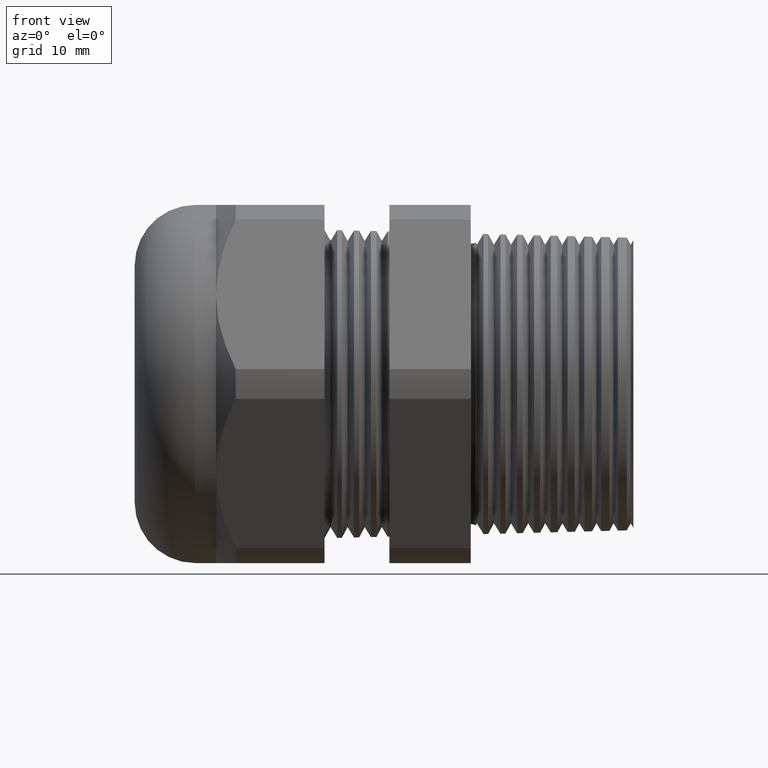
[diagram: clean part render]
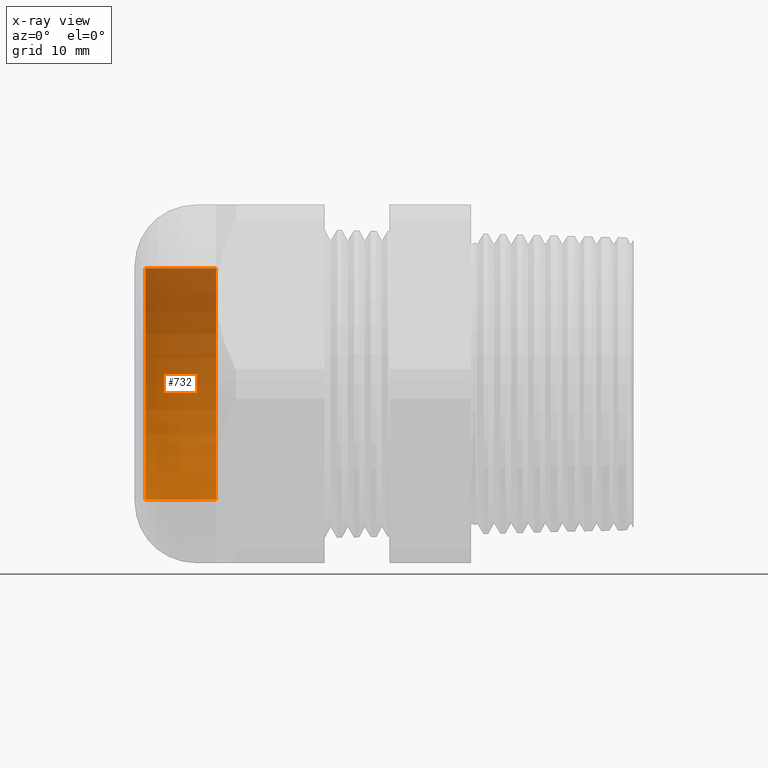
[diagram: x-ray — body ghosted, one internal face saturated and labeled with its STEP entity id]
A machine part, front view, then the same camera in x-ray: the body is ghosted and one INTERNAL B-rep face — a face not visible from any outside direction — is saturated and labeled: STEP entity #732.
In plain terms, the highlighted cylindrical surface (partial cylindrical patch) has radius 10.668 mm, axis along (1, 0, 0).
Its self-contained STEP definition (entity closure, byte-faithful):
#691 = EDGE_LOOP ( 'NONE', ( #733, #734, #699, #736 ) ) ;
#695 = VERTEX_POINT ( 'NONE', #2359 ) ;
#696 = VERTEX_POINT ( 'NONE', #2358 ) ;
#697 = EDGE_CURVE ( 'NONE', #750, #696, #2357, .T. ) ;
#699 = ORIENTED_EDGE ( 'NONE', *, *, #707, .F. ) ;
#707 = EDGE_CURVE ( 'NONE', #735, #696, #2406, .T. ) ;
#709 = EDGE_CURVE ( 'NONE', #695, #750, #2399, .T. ) ;
#732 = ADVANCED_FACE ( 'NONE', ( #2415 ), #2414, .T. ) ;
#733 = ORIENTED_EDGE ( 'NONE', *, *, #709, .T. ) ;
#734 = ORIENTED_EDGE ( 'NONE', *, *, #697, .T. ) ;
#735 = VERTEX_POINT ( 'NONE', #2473 ) ;
#736 = ORIENTED_EDGE ( 'NONE', *, *, #737, .F. ) ;
#737 = EDGE_CURVE ( 'NONE', #695, #735, #2472, .T. ) ;
#750 = VERTEX_POINT ( 'NONE', #2444 ) ;
#2354 = DIRECTION ( 'NONE',  ( 1.000000000000000000, 0.0000000000000000000, 0.0000000000000000000 ) ) ;
#2355 = VECTOR ( 'NONE', #2354, 39.37007874015748100 ) ;
#2356 = CARTESIAN_POINT ( 'NONE',  ( 0.0000000000000000000, 5.143516556418884400E-017, 0.4200000000000000400 ) ) ;
#2357 = LINE ( 'NONE', #2356, #2355 ) ;
#2358 = CARTESIAN_POINT ( 'NONE',  ( -1.234724409448819000, 5.143516556418884400E-017, 0.4200000000000000400 ) ) ;
#2359 = CARTESIAN_POINT ( 'NONE',  ( -1.491000000000000100, 0.0000000000000000000, -0.4200000000000000400 ) ) ;
#2395 = DIRECTION ( 'NONE',  ( 0.0000000000000000000, 0.0000000000000000000, -1.000000000000000000 ) ) ;
#2396 = DIRECTION ( 'NONE',  ( 1.000000000000000000, 0.0000000000000000000, 0.0000000000000000000 ) ) ;
#2397 = CARTESIAN_POINT ( 'NONE',  ( -1.491000000000000100, 0.0000000000000000000, 0.0000000000000000000 ) ) ;
#2398 = AXIS2_PLACEMENT_3D ( 'NONE', #2397, #2396, #2395 ) ;
#2399 = CIRCLE ( 'NONE', #2398, 0.4200000000000000400 ) ;
#2402 = DIRECTION ( 'NONE',  ( 0.0000000000000000000, 0.0000000000000000000, -1.000000000000000000 ) ) ;
#2403 = DIRECTION ( 'NONE',  ( 1.000000000000000000, 0.0000000000000000000, 0.0000000000000000000 ) ) ;
#2404 = CARTESIAN_POINT ( 'NONE',  ( -1.234724409448819000, 0.0000000000000000000, 0.0000000000000000000 ) ) ;
#2405 = AXIS2_PLACEMENT_3D ( 'NONE', #2404, #2403, #2402 ) ;
#2406 = CIRCLE ( 'NONE', #2405, 0.4200000000000000400 ) ;
#2412 = CARTESIAN_POINT ( 'NONE',  ( 0.0000000000000000000, 0.0000000000000000000, 0.0000000000000000000 ) ) ;
#2413 = AXIS2_PLACEMENT_3D ( 'NONE', #2412, #2475, #2474 ) ;
#2414 = CYLINDRICAL_SURFACE ( 'NONE', #2413, 0.4200000000000000400 ) ;
#2415 = FACE_OUTER_BOUND ( 'NONE', #691, .T. ) ;
#2444 = CARTESIAN_POINT ( 'NONE',  ( -1.491000000000000100, 5.143516556418884400E-017, 0.4200000000000000400 ) ) ;
#2469 = DIRECTION ( 'NONE',  ( 1.000000000000000000, 0.0000000000000000000, 0.0000000000000000000 ) ) ;
#2470 = VECTOR ( 'NONE', #2469, 39.37007874015748100 ) ;
#2471 = CARTESIAN_POINT ( 'NONE',  ( 0.0000000000000000000, 0.0000000000000000000, -0.4200000000000000400 ) ) ;
#2472 = LINE ( 'NONE', #2471, #2470 ) ;
#2473 = CARTESIAN_POINT ( 'NONE',  ( -1.234724409448819000, 0.0000000000000000000, -0.4200000000000000400 ) ) ;
#2474 = DIRECTION ( 'NONE',  ( 0.0000000000000000000, 0.0000000000000000000, -1.000000000000000000 ) ) ;
#2475 = DIRECTION ( 'NONE',  ( 1.000000000000000000, 0.0000000000000000000, 0.0000000000000000000 ) ) ;